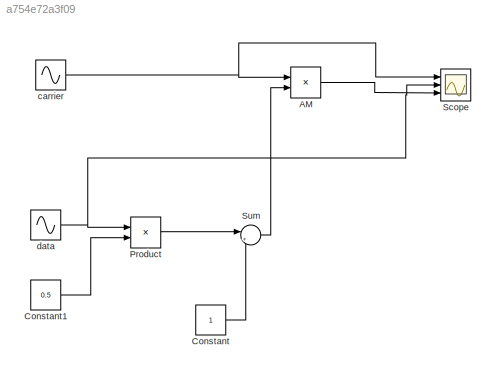
MODEL slx_a754e72a3f09
KIND model
CONFIG AbsTol = auto
CONFIG EnableMultiTasking = off
CONFIG FixedStep = auto
CONFIG MaxStep = auto
CONFIG MinStep = auto
CONFIG RelTol = 1e-3
CONFIG SampleTimeConstraint = Unconstrained
CONFIG SolverName = VariableStepAuto
CONFIG StartTime = 0.0
CONFIG StopTime = 10.0
BLOCK [Product] AM
  Ports = [2, 1]
BLOCK [Constant] Constant
BLOCK [Constant] Constant1
  Value = 0.5
BLOCK [Product] Product
  Ports = [2, 1]
BLOCK [Scope] Scope
  Floating = off
  NumInputPorts = 3
  Ports = [3]
  ScopeSpecificationString = Simulink.scopes.TimeScopeBlockCfg('CurrentConfiguration', extmgr.ConfigurationSet(extmgr.Configuration('Core','General UI',true),extmgr.Configuration('Core','Source UI',true),extmgr.Configuration('Sources','WiredSimulink',true),extmgr.Configuration('Visuals','Time Domain',true,'SerializedDisplays',{struct('MinYLimReal','-1.87056','MaxYLimReal','1.87451','YLabelReal','','MinYLimMag','0.00000','MaxY...<+3033ch>
BLOCK [Sum] Sum
  Inputs = |++
  Ports = [2, 1]
BLOCK [Sin] carrier
  Frequency = 2*pi*25
  Ports = [0, 1]
  SampleTime = 1/5000
BLOCK [Sin] data
  Frequency = 2*pi
  Ports = [0, 1]
  SampleTime = 1/5000
LINE AM:1 -> Scope:3
LINE Constant1:1 -> Product:2
LINE Constant:1 -> Sum:2
LINE Product:1 -> Sum:1
LINE Sum:1 -> AM:2
NET carrier:1 -> AM:1, Scope:1
NET data:1 -> Product:1, Scope:2
note: NET lines group one-source signal fan-out (src -> all destinations, sorted); 1:1 wires keep LINE
